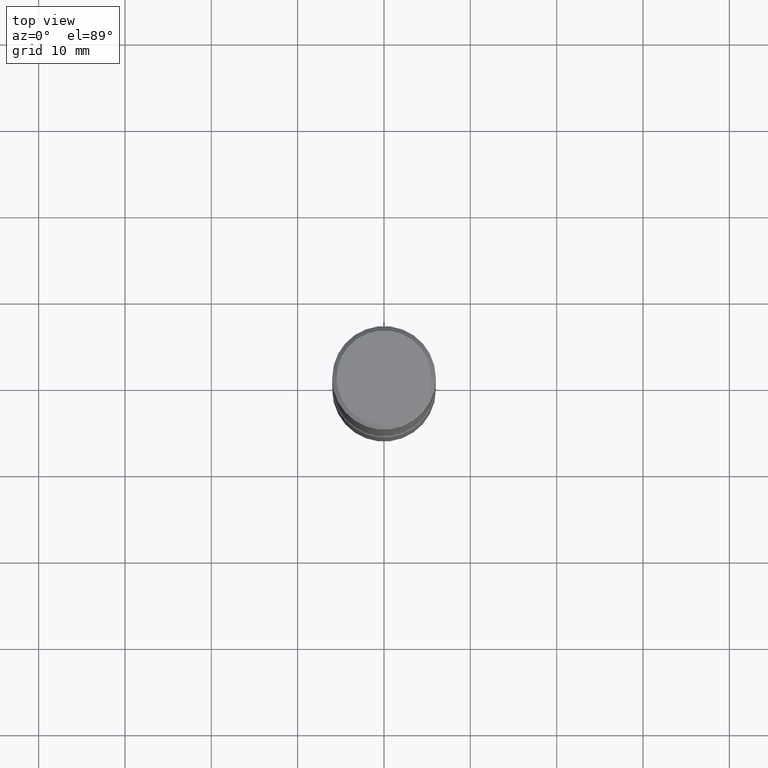
[diagram: clean part render]
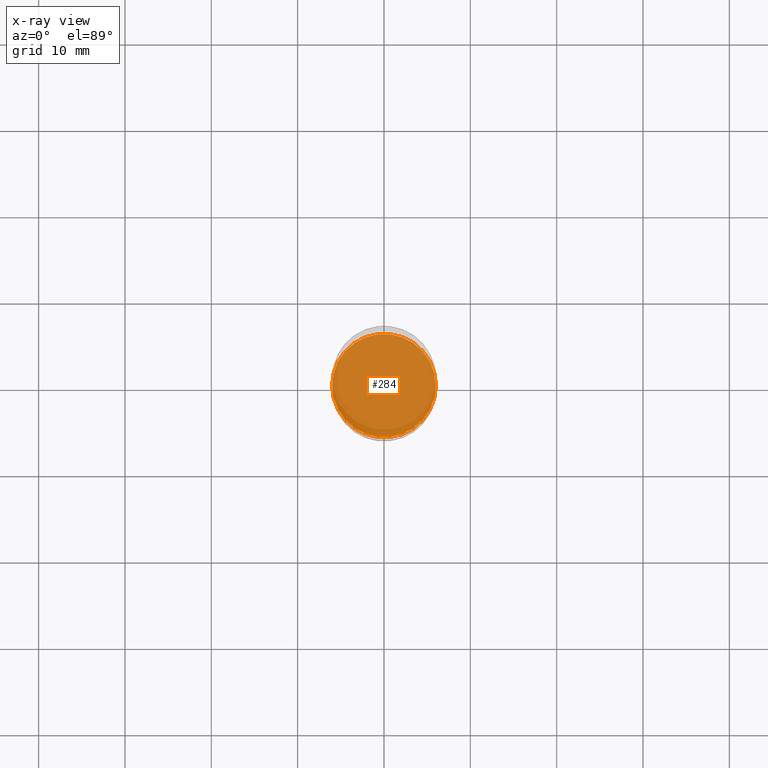
[diagram: x-ray — body ghosted, one internal face saturated and labeled with its STEP entity id]
A machine part, top view, then the same camera in x-ray: the body is ghosted and one INTERNAL B-rep face — a face not visible from any outside direction — is saturated and labeled: STEP entity #284.
In plain terms, the highlighted planar face has unit normal (0, -0, -1).
Its self-contained STEP definition (entity closure, byte-faithful):
#3 = CIRCLE ( 'NONE', #320, 0.2362000000000002153 ) ;
#83 = DIRECTION ( 'NONE',  ( -1.000000000000000000, 6.982962677686265922E-15, -4.876176775795935793E-29 ) ) ;
#84 = ORIENTED_EDGE ( 'NONE', *, *, #115, .T. ) ;
#94 = ORIENTED_EDGE ( 'NONE', *, *, #382, .T. ) ;
#97 = CARTESIAN_POINT ( 'NONE',  ( 5.102715210985905155E-29, -7.285324961630105839E-15, -2.086599999999999344 ) ) ;
#115 = EDGE_CURVE ( 'NONE', #527, #253, #186, .T. ) ;
#150 = AXIS2_PLACEMENT_3D ( 'NONE', #158, #331, #506 ) ;
#158 = CARTESIAN_POINT ( 'NONE',  ( 5.102715210985905155E-29, -7.285324961630105839E-15, -2.086599999999999344 ) ) ;
#179 = PLANE ( 'NONE',  #278 ) ;
#186 = CIRCLE ( 'NONE', #150, 0.2362000000000002153 ) ;
#234 = CARTESIAN_POINT ( 'NONE',  ( 5.102715210985905155E-29, -7.285324961630105839E-15, -2.086599999999999344 ) ) ;
#253 = VERTEX_POINT ( 'NONE', #524 ) ;
#268 = DIRECTION ( 'NONE',  ( 2.438088387897960049E-29, -3.491481338843145188E-15, -1.000000000000000000 ) ) ;
#278 = AXIS2_PLACEMENT_3D ( 'NONE', #97, #268, #83 ) ;
#284 = ADVANCED_FACE ( 'NONE', ( #430 ), #179, .F. ) ;
#312 = EDGE_LOOP ( 'NONE', ( #84, #94 ) ) ;
#320 = AXIS2_PLACEMENT_3D ( 'NONE', #234, #533, #496 ) ;
#331 = DIRECTION ( 'NONE',  ( -2.445468806185136597E-29, 3.491481338843145583E-15, 1.000000000000000000 ) ) ;
#382 = EDGE_CURVE ( 'NONE', #253, #527, #3, .T. ) ;
#430 = FACE_OUTER_BOUND ( 'NONE', #312, .T. ) ;
#496 = DIRECTION ( 'NONE',  ( 1.000000000000000000, -6.982962677686266711E-15, 0.000000000000000000 ) ) ;
#506 = DIRECTION ( 'NONE',  ( 1.000000000000000000, -6.982962677686266711E-15, 0.000000000000000000 ) ) ;
#524 = CARTESIAN_POINT ( 'NONE',  ( -0.2362000000000002153, -7.462919925426822069E-15, -2.086599999999999344 ) ) ;
#527 = VERTEX_POINT ( 'NONE', #537 ) ;
#533 = DIRECTION ( 'NONE',  ( -2.445468806185136597E-29, 3.491481338843145583E-15, 1.000000000000000000 ) ) ;
#537 = CARTESIAN_POINT ( 'NONE',  ( 0.2362000000000002153, -8.934700746099602364E-15, -2.086599999999999344 ) ) ;